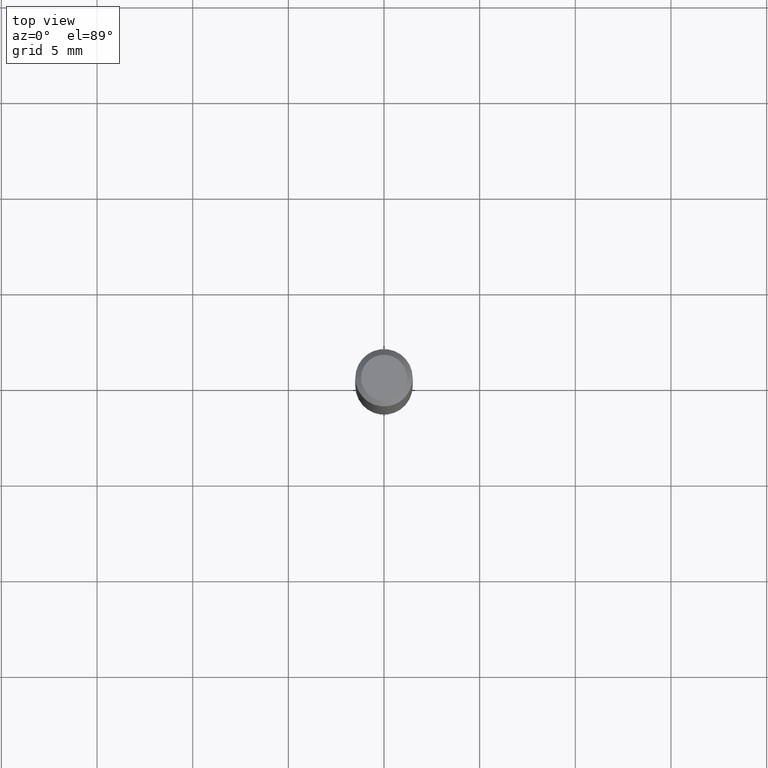
[diagram: clean part render]
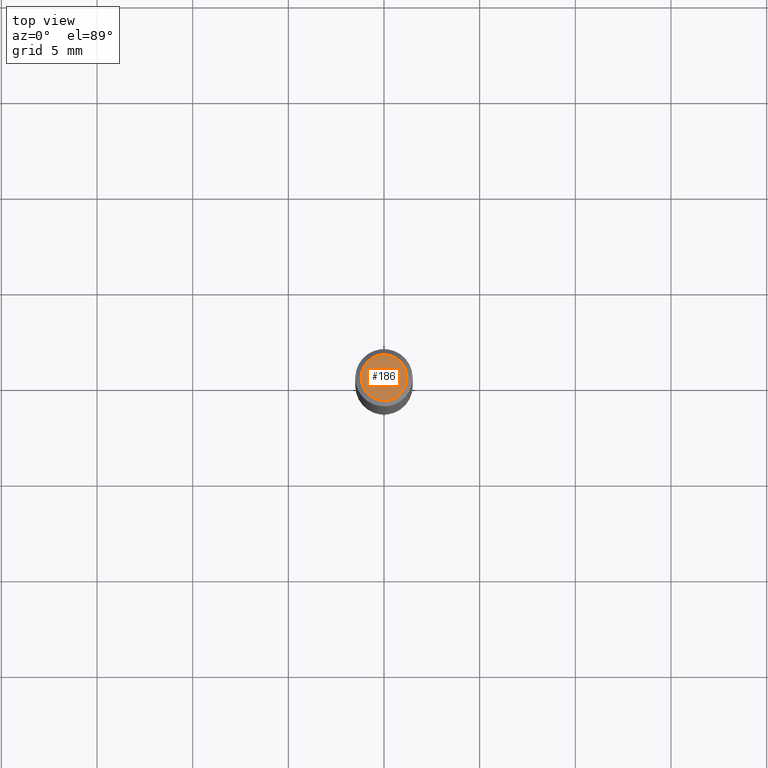
[diagram: same view with one face highlighted and labeled with its STEP entity id]
A machine part, top view. The second image highlights one B-rep face of the part: STEP entity #186.
In plain terms, the highlighted planar face has unit normal (0, -0, -1).
Its self-contained STEP definition (entity closure, byte-faithful):
#24 = DIRECTION ( 'NONE',  ( 2.438088387897960049E-29, -3.491481338843145188E-15, -1.000000000000000000 ) ) ;
#42 = EDGE_CURVE ( 'NONE', #448, #166, #296, .T. ) ;
#48 = CARTESIAN_POINT ( 'NONE',  ( -0.04724000000000000421, 3.504923541997677355E-16, -3.380025165670481712E-19 ) ) ;
#99 = DIRECTION ( 'NONE',  ( -1.000000000000000000, 6.982962677686265922E-15, -4.876176775795935793E-29 ) ) ;
#107 = DIRECTION ( 'NONE',  ( 1.000000000000000000, -6.982962677686266711E-15, 4.876185090822587894E-29 ) ) ;
#166 = VERTEX_POINT ( 'NONE', #48 ) ;
#179 = CARTESIAN_POINT ( 'NONE',  ( 4.132873053354867254E-48, -5.900647395337818946E-34, -1.690012582823346072E-19 ) ) ;
#186 = ADVANCED_FACE ( 'NONE', ( #393 ), #434, .F. ) ;
#236 = ORIENTED_EDGE ( 'NONE', *, *, #425, .T. ) ;
#256 = CIRCLE ( 'NONE', #271, 0.04724000000000000421 ) ;
#271 = AXIS2_PLACEMENT_3D ( 'NONE', #281, #383, #107 ) ;
#281 = CARTESIAN_POINT ( 'NONE',  ( 8.265746106709734507E-48, -1.180129479067563789E-33, -3.380025165646692144E-19 ) ) ;
#296 = CIRCLE ( 'NONE', #488, 0.04724000000000000421 ) ;
#318 = CARTESIAN_POINT ( 'NONE',  ( 8.265746106709734507E-48, -1.180129479067563789E-33, -3.380025165646692144E-19 ) ) ;
#352 = AXIS2_PLACEMENT_3D ( 'NONE', #179, #24, #99 ) ;
#383 = DIRECTION ( 'NONE',  ( -2.445468806185136597E-29, 3.491481338843145583E-15, 1.000000000000000000 ) ) ;
#389 = EDGE_LOOP ( 'NONE', ( #236, #420 ) ) ;
#393 = FACE_OUTER_BOUND ( 'NONE', #389, .T. ) ;
#420 = ORIENTED_EDGE ( 'NONE', *, *, #42, .T. ) ;
#425 = EDGE_CURVE ( 'NONE', #166, #448, #256, .T. ) ;
#434 = PLANE ( 'NONE',  #352 ) ;
#448 = VERTEX_POINT ( 'NONE', #469 ) ;
#462 = DIRECTION ( 'NONE',  ( 1.000000000000000000, -6.982962677686266711E-15, 4.876185090822587894E-29 ) ) ;
#466 = DIRECTION ( 'NONE',  ( -2.445468806185136597E-29, 3.491481338843145583E-15, 1.000000000000000000 ) ) ;
#469 = CARTESIAN_POINT ( 'NONE',  ( 0.04724000000000000421, -3.852183633974369345E-16, -3.380025165621689721E-19 ) ) ;
#488 = AXIS2_PLACEMENT_3D ( 'NONE', #318, #466, #462 ) ;